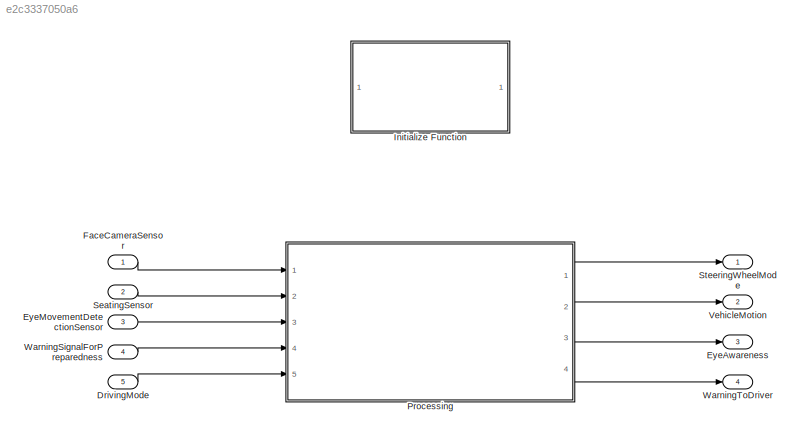
MODEL slx_e2c3337050a6
KIND model
CONFIG AbsTol = auto
CONFIG EnableMultiTasking = off
CONFIG FixedStep = 0.2
CONFIG MaxStep = auto
CONFIG MinStep = auto
CONFIG RelTol = 1e-3
CONFIG SampleTimeConstraint = Unconstrained
CONFIG SolverName = FixedStepAuto
CONFIG StartTime = 0.0
CONFIG StopTime = 10.0
WORKSPACE source: external: MAT-File  (data not in archive)
BLOCK [Inport] DrivingMode
  Port = 5
BLOCK [Outport] EyeAwareness
  Port = 3
  VectorParamsAs1DForOutWhenUnconnected = off
BLOCK [Inport] EyeMovementDetectionSensor
  Port = 3
BLOCK [Inport] FaceCameraSensor
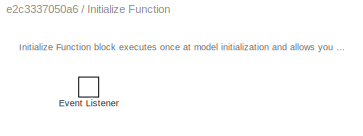
BLOCK [SubSystem] Initialize Function
  Ports = []
  RequestExecContextInheritance = off
  TreatAsAtomicUnit = on
BLOCK [EventListener] Initialize Function/Event Listener
  DisableCoverage = on
  EventName = reset
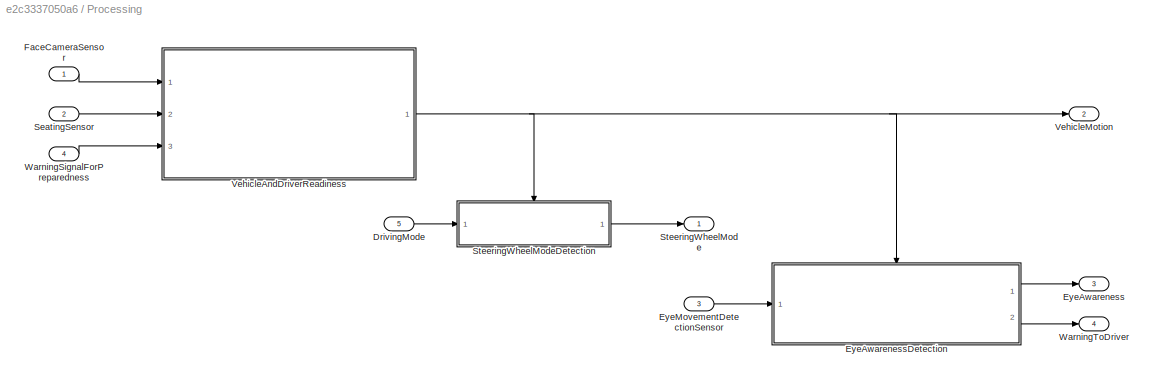
BLOCK [SubSystem] Processing
  Ports = [5, 4]
  RequestExecContextInheritance = off
  SystemSampleTime = 1
BLOCK [Inport] Processing/DrivingMode
  Port = 5
BLOCK [Outport] Processing/EyeAwareness
  Port = 3
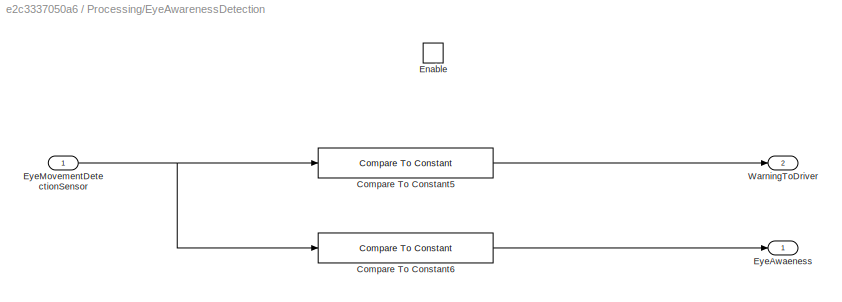
BLOCK [SubSystem] Processing/EyeAwarenessDetection
  Ports = [1, 2, 1]
  RequestExecContextInheritance = off
BLOCK [Reference] Processing/EyeAwarenessDetection/Compare To Constant5  REF=simulink/Logic and Bit
Operations/Compare
To Constant
  Ports = [1, 1]
  SourceBlock = simulink/Logic and Bit\nOperations/Compare\nTo Constant
  SourceProductBaseCode = SL
  SourceType = Compare To Constant
BLOCK [Reference] Processing/EyeAwarenessDetection/Compare To Constant6  REF=simulink/Logic and Bit
Operations/Compare
To Constant
  Ports = [1, 1]
  SourceBlock = simulink/Logic and Bit\nOperations/Compare\nTo Constant
  SourceProductBaseCode = SL
  SourceType = Compare To Constant
BLOCK [EnablePort] Processing/EyeAwarenessDetection/Enable
  Ports = []
BLOCK [Outport] Processing/EyeAwarenessDetection/EyeAwaeness
BLOCK [Inport] Processing/EyeAwarenessDetection/EyeMovementDetectionSensor
BLOCK [Outport] Processing/EyeAwarenessDetection/WarningToDriver
  Port = 2
BLOCK [Inport] Processing/EyeMovementDetectionSensor
  Port = 3
BLOCK [Inport] Processing/FaceCameraSensor
BLOCK [Inport] Processing/SeatingSensor
  Port = 2
BLOCK [Outport] Processing/SteeringWheelMode
  VectorParamsAs1DForOutWhenUnconnected = off
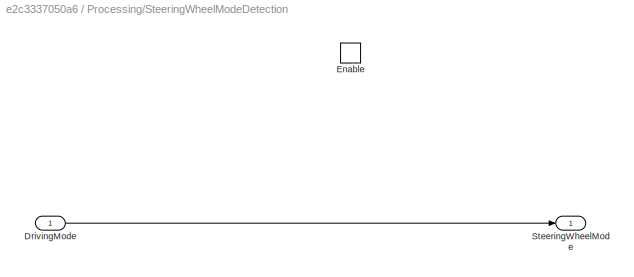
BLOCK [SubSystem] Processing/SteeringWheelModeDetection
  Ports = [1, 1, 1]
  RequestExecContextInheritance = off
BLOCK [Inport] Processing/SteeringWheelModeDetection/DrivingMode
BLOCK [EnablePort] Processing/SteeringWheelModeDetection/Enable
  Ports = []
BLOCK [Outport] Processing/SteeringWheelModeDetection/SteeringWheelMode
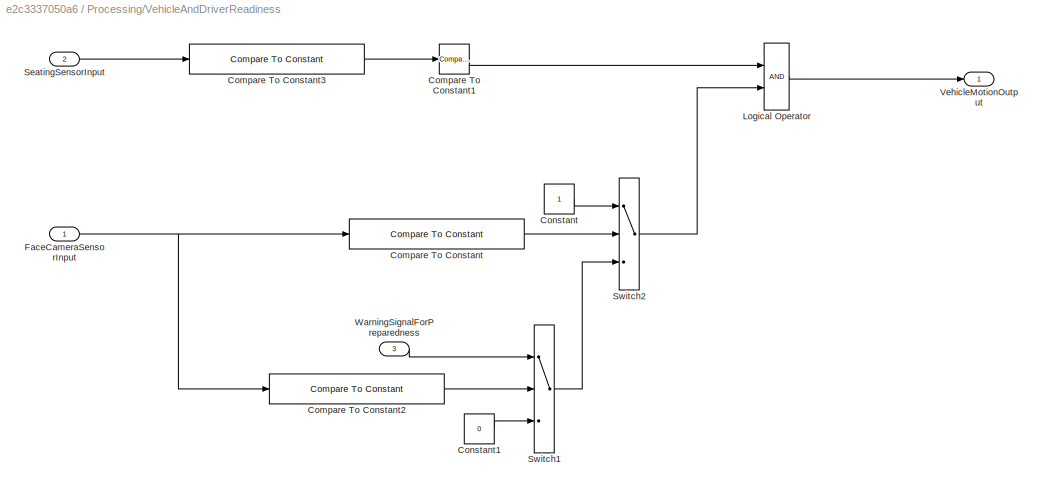
BLOCK [SubSystem] Processing/VehicleAndDriverReadiness
  Ports = [3, 1]
  RequestExecContextInheritance = off
BLOCK [Reference] Processing/VehicleAndDriverReadiness/Compare To Constant  REF=simulink/Logic and Bit
Operations/Compare
To Constant
  Ports = [1, 1]
  SourceBlock = simulink/Logic and Bit\nOperations/Compare\nTo Constant
  SourceProductBaseCode = SL
  SourceType = Compare To Constant
BLOCK [Reference] Processing/VehicleAndDriverReadiness/Compare To Constant1  REF=simulink/Logic and Bit
Operations/Compare
To Constant
  Ports = [1, 1]
  SourceBlock = simulink/Logic and Bit\nOperations/Compare\nTo Constant
  SourceProductBaseCode = SL
  SourceType = Compare To Constant
BLOCK [Reference] Processing/VehicleAndDriverReadiness/Compare To Constant2  REF=simulink/Logic and Bit
Operations/Compare
To Constant
  Ports = [1, 1]
  SourceBlock = simulink/Logic and Bit\nOperations/Compare\nTo Constant
  SourceProductBaseCode = SL
  SourceType = Compare To Constant
BLOCK [Reference] Processing/VehicleAndDriverReadiness/Compare To Constant3  REF=simulink/Logic and Bit
Operations/Compare
To Constant
  Ports = [1, 1]
  SourceBlock = simulink/Logic and Bit\nOperations/Compare\nTo Constant
  SourceProductBaseCode = SL
  SourceType = Compare To Constant
BLOCK [Constant] Processing/VehicleAndDriverReadiness/Constant
BLOCK [Constant] Processing/VehicleAndDriverReadiness/Constant1
  Value = 0
BLOCK [Inport] Processing/VehicleAndDriverReadiness/FaceCameraSensorInput
BLOCK [Logic] Processing/VehicleAndDriverReadiness/Logical Operator
  AllPortsSameDT = off
  OutDataTypeStr = boolean
  Ports = [2, 1]
BLOCK [Inport] Processing/VehicleAndDriverReadiness/SeatingSensorInput
  Port = 2
BLOCK [Switch] Processing/VehicleAndDriverReadiness/Switch1
  Criteria = u2 > Threshold
  InputSameDT = off
  SaturateOnIntegerOverflow = off
BLOCK [Switch] Processing/VehicleAndDriverReadiness/Switch2
  Criteria = u2 > Threshold
  InputSameDT = off
  SaturateOnIntegerOverflow = off
BLOCK [Outport] Processing/VehicleAndDriverReadiness/VehicleMotionOutput
  VectorParamsAs1DForOutWhenUnconnected = off
BLOCK [Inport] Processing/VehicleAndDriverReadiness/WarningSignalForPreparedness
  Port = 3
BLOCK [Outport] Processing/VehicleMotion
  Port = 2
  VectorParamsAs1DForOutWhenUnconnected = off
BLOCK [Inport] Processing/WarningSignalForPreparedness
  Port = 4
BLOCK [Outport] Processing/WarningToDriver
  Port = 4
BLOCK [Inport] SeatingSensor
  Port = 2
BLOCK [Outport] SteeringWheelMode
  VectorParamsAs1DForOutWhenUnconnected = off
BLOCK [Outport] VehicleMotion
  Port = 2
  VectorParamsAs1DForOutWhenUnconnected = off
BLOCK [Inport] WarningSignalForPreparedness
  Port = 4
BLOCK [Outport] WarningToDriver
  Port = 4
  VectorParamsAs1DForOutWhenUnconnected = off
ANNOTATION Initialize Function: Initialize Function block executes once at model initialization and allows you to compute and override initial values of states in various blocks in the model.
LINE DrivingMode:1 -> Processing:5
LINE EyeMovementDetectionSensor:1 -> Processing:3
LINE FaceCameraSensor:1 -> Processing:1
LINE Processing/DrivingMode:1 -> Processing/SteeringWheelModeDetection:1
LINE Processing/EyeAwarenessDetection/Compare To Constant5:1 -> Processing/EyeAwarenessDetection/WarningToDriver:1
LINE Processing/EyeAwarenessDetection/Compare To Constant6:1 -> Processing/EyeAwarenessDetection/EyeAwaeness:1
NET Processing/EyeAwarenessDetection/EyeMovementDetectionSensor:1 -> Processing/EyeAwarenessDetection/Compare To Constant5:1, Processing/EyeAwarenessDetection/Compare To Constant6:1
LINE Processing/EyeAwarenessDetection:1 -> Processing/EyeAwareness:1
LINE Processing/EyeAwarenessDetection:2 -> Processing/WarningToDriver:1
LINE Processing/EyeMovementDetectionSensor:1 -> Processing/EyeAwarenessDetection:1
LINE Processing/FaceCameraSensor:1 -> Processing/VehicleAndDriverReadiness:1
LINE Processing/SeatingSensor:1 -> Processing/VehicleAndDriverReadiness:2
LINE Processing/SteeringWheelModeDetection/DrivingMode:1 -> Processing/SteeringWheelModeDetection/SteeringWheelMode:1
LINE Processing/SteeringWheelModeDetection:1 -> Processing/SteeringWheelMode:1
LINE Processing/VehicleAndDriverReadiness/Compare To Constant1:1 -> Processing/VehicleAndDriverReadiness/Logical Operator:1
LINE Processing/VehicleAndDriverReadiness/Compare To Constant2:1 -> Processing/VehicleAndDriverReadiness/Switch1:2
LINE Processing/VehicleAndDriverReadiness/Compare To Constant3:1 -> Processing/VehicleAndDriverReadiness/Compare To Constant1:1
LINE Processing/VehicleAndDriverReadiness/Compare To Constant:1 -> Processing/VehicleAndDriverReadiness/Switch2:2
LINE Processing/VehicleAndDriverReadiness/Constant1:1 -> Processing/VehicleAndDriverReadiness/Switch1:3
LINE Processing/VehicleAndDriverReadiness/Constant:1 -> Processing/VehicleAndDriverReadiness/Switch2:1
NET Processing/VehicleAndDriverReadiness/FaceCameraSensorInput:1 -> Processing/VehicleAndDriverReadiness/Compare To Constant2:1, Processing/VehicleAndDriverReadiness/Compare To Constant:1
LINE Processing/VehicleAndDriverReadiness/Logical Operator:1 -> Processing/VehicleAndDriverReadiness/VehicleMotionOutput:1
LINE Processing/VehicleAndDriverReadiness/SeatingSensorInput:1 -> Processing/VehicleAndDriverReadiness/Compare To Constant3:1
LINE Processing/VehicleAndDriverReadiness/Switch1:1 -> Processing/VehicleAndDriverReadiness/Switch2:3
LINE Processing/VehicleAndDriverReadiness/Switch2:1 -> Processing/VehicleAndDriverReadiness/Logical Operator:2
LINE Processing/VehicleAndDriverReadiness/WarningSignalForPreparedness:1 -> Processing/VehicleAndDriverReadiness/Switch1:1
NET Processing/VehicleAndDriverReadiness:1 -> Processing/EyeAwarenessDetection:enable, Processing/SteeringWheelModeDetection:enable, Processing/VehicleMotion:1
LINE Processing/WarningSignalForPreparedness:1 -> Processing/VehicleAndDriverReadiness:3
LINE Processing:1 -> SteeringWheelMode:1
LINE Processing:2 -> VehicleMotion:1
LINE Processing:3 -> EyeAwareness:1
LINE Processing:4 -> WarningToDriver:1
LINE SeatingSensor:1 -> Processing:2
LINE WarningSignalForPreparedness:1 -> Processing:4
note: NET lines group one-source signal fan-out (src -> all destinations, sorted); 1:1 wires keep LINE
